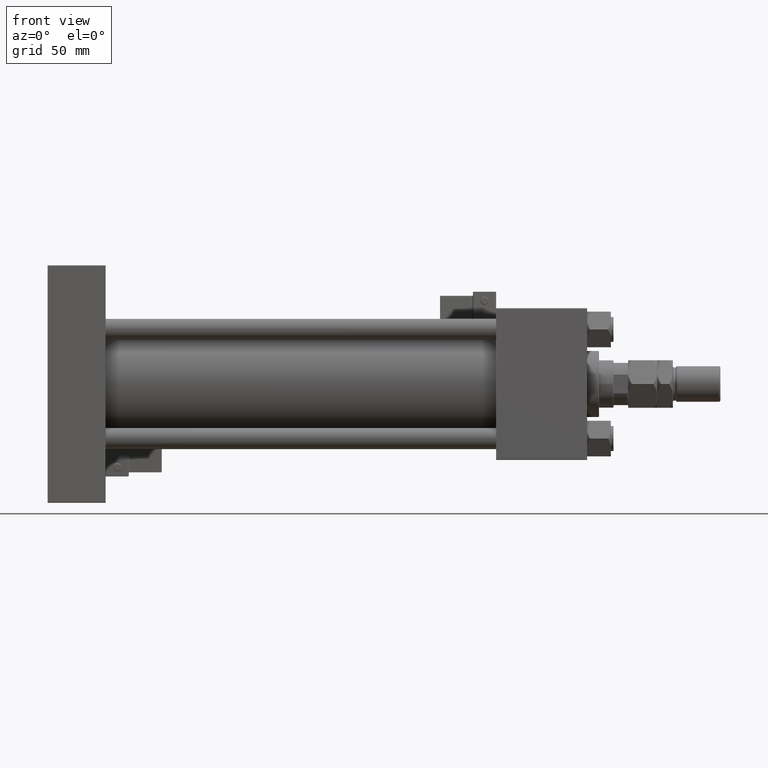
[diagram: clean part render]
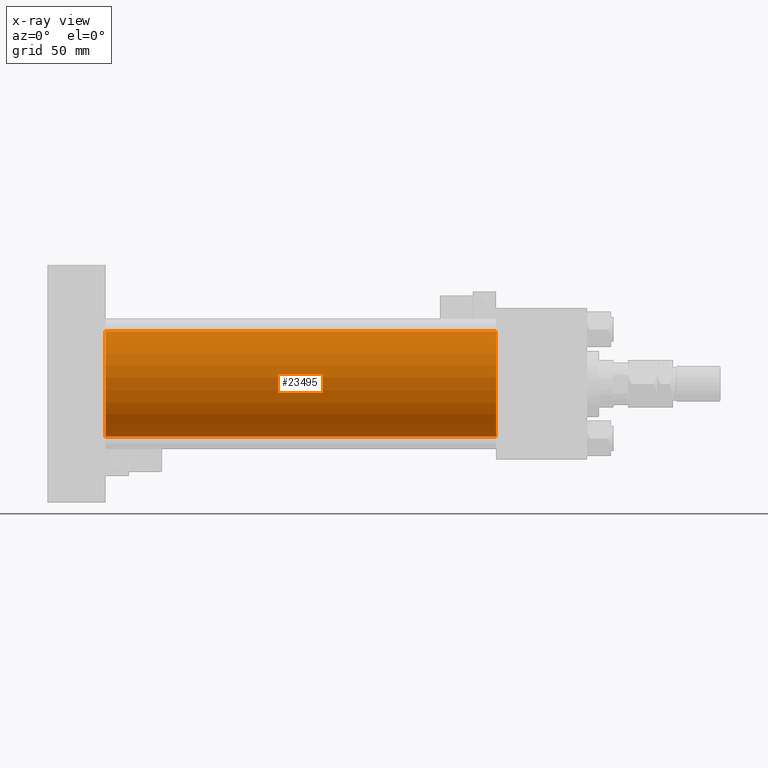
[diagram: x-ray — body ghosted, one internal face saturated and labeled with its STEP entity id]
A machine part, front view, then the same camera in x-ray: the body is ghosted and one INTERNAL B-rep face — a face not visible from any outside direction — is saturated and labeled: STEP entity #23495.
In plain terms, the highlighted cylindrical surface (partial cylindrical patch) has radius 40 mm, axis along (-1, -0, -0).
Its self-contained STEP definition (entity closure, byte-faithful):
#1111 = VECTOR ( 'NONE', #51034, 1000.000000000000000 ) ;
#1911 = CARTESIAN_POINT ( 'NONE',  ( 44.00000000000000000, 2.296501982624201990E-15, -40.00000000000000000 ) ) ;
#3686 = AXIS2_PLACEMENT_3D ( 'NONE', #50931, #11930, #37858 ) ;
#8954 = CARTESIAN_POINT ( 'NONE',  ( 44.00000000000000000, -2.602085213965210642E-15, 0.000000000000000000 ) ) ;
#11495 = CARTESIAN_POINT ( 'NONE',  ( 339.9999999999999432, 2.296501982624201990E-15, -40.00000000000000000 ) ) ;
#11898 = CIRCLE ( 'NONE', #48309, 40.00000000000000000 ) ;
#11930 = DIRECTION ( 'NONE',  ( -1.000000000000000000, -0.000000000000000000, -0.000000000000000000 ) ) ;
#12884 = CARTESIAN_POINT ( 'NONE',  ( 339.9999999999999432, -2.602085213965210642E-15, 40.00000000000000000 ) ) ;
#13363 = AXIS2_PLACEMENT_3D ( 'NONE', #19947, #49561, #54672 ) ;
#15221 = DIRECTION ( 'NONE',  ( -1.000000000000000000, -0.000000000000000000, -0.000000000000000000 ) ) ;
#19947 = CARTESIAN_POINT ( 'NONE',  ( 339.9999999999999432, -2.602085213965210642E-15, 0.000000000000000000 ) ) ;
#20311 = ORIENTED_EDGE ( 'NONE', *, *, #49285, .F. ) ;
#21617 = CYLINDRICAL_SURFACE ( 'NONE', #3686, 40.00000000000000000 ) ;
#22355 = DIRECTION ( 'NONE',  ( 0.000000000000000000, 0.000000000000000000, -1.000000000000000000 ) ) ;
#23184 = VERTEX_POINT ( 'NONE', #29709 ) ;
#23495 = ADVANCED_FACE ( 'NONE', ( #25862 ), #21617, .F. ) ;
#25862 = FACE_OUTER_BOUND ( 'NONE', #53178, .T. ) ;
#29218 = ORIENTED_EDGE ( 'NONE', *, *, #56048, .F. ) ;
#29709 = CARTESIAN_POINT ( 'NONE',  ( 339.9999999999999432, -2.602085213965210642E-15, 40.00000000000000000 ) ) ;
#30627 = CIRCLE ( 'NONE', #13363, 40.00000000000000000 ) ;
#35377 = EDGE_CURVE ( 'NONE', #48035, #39435, #49954, .T. ) ;
#36312 = ORIENTED_EDGE ( 'NONE', *, *, #40345, .T. ) ;
#37456 = ORIENTED_EDGE ( 'NONE', *, *, #35377, .T. ) ;
#37858 = DIRECTION ( 'NONE',  ( 0.000000000000000000, 0.000000000000000000, 1.000000000000000000 ) ) ;
#39435 = VERTEX_POINT ( 'NONE', #1911 ) ;
#40345 = EDGE_CURVE ( 'NONE', #23184, #48035, #30627, .T. ) ;
#43259 = VERTEX_POINT ( 'NONE', #49834 ) ;
#48035 = VERTEX_POINT ( 'NONE', #51448 ) ;
#48309 = AXIS2_PLACEMENT_3D ( 'NONE', #8954, #48813, #22355 ) ;
#48813 = DIRECTION ( 'NONE',  ( 1.000000000000000000, 0.000000000000000000, 0.000000000000000000 ) ) ;
#49285 = EDGE_CURVE ( 'NONE', #43259, #39435, #11898, .T. ) ;
#49561 = DIRECTION ( 'NONE',  ( 1.000000000000000000, 0.000000000000000000, 0.000000000000000000 ) ) ;
#49834 = CARTESIAN_POINT ( 'NONE',  ( 44.00000000000000000, -2.602085213965210642E-15, 40.00000000000000000 ) ) ;
#49954 = LINE ( 'NONE', #11495, #56011 ) ;
#50931 = CARTESIAN_POINT ( 'NONE',  ( 339.9999999999999432, -2.602085213965210642E-15, 0.000000000000000000 ) ) ;
#51034 = DIRECTION ( 'NONE',  ( -1.000000000000000000, -0.000000000000000000, -0.000000000000000000 ) ) ;
#51448 = CARTESIAN_POINT ( 'NONE',  ( 339.9999999999999432, 2.296501982624201990E-15, -40.00000000000000000 ) ) ;
#51889 = LINE ( 'NONE', #12884, #1111 ) ;
#53178 = EDGE_LOOP ( 'NONE', ( #36312, #37456, #20311, #29218 ) ) ;
#54672 = DIRECTION ( 'NONE',  ( 0.000000000000000000, 0.000000000000000000, -1.000000000000000000 ) ) ;
#56011 = VECTOR ( 'NONE', #15221, 1000.000000000000000 ) ;
#56048 = EDGE_CURVE ( 'NONE', #23184, #43259, #51889, .T. ) ;